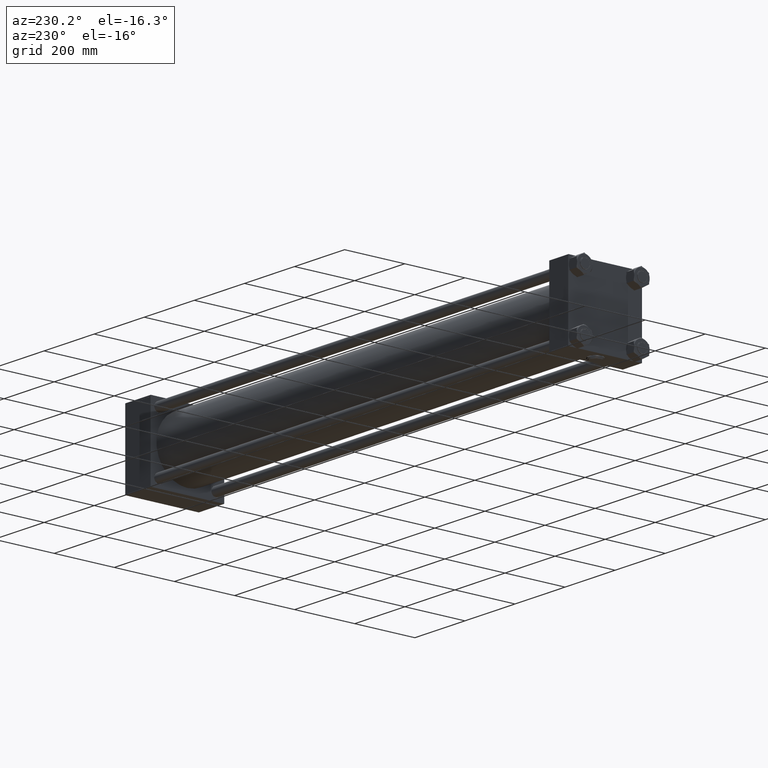
[diagram: clean part render]
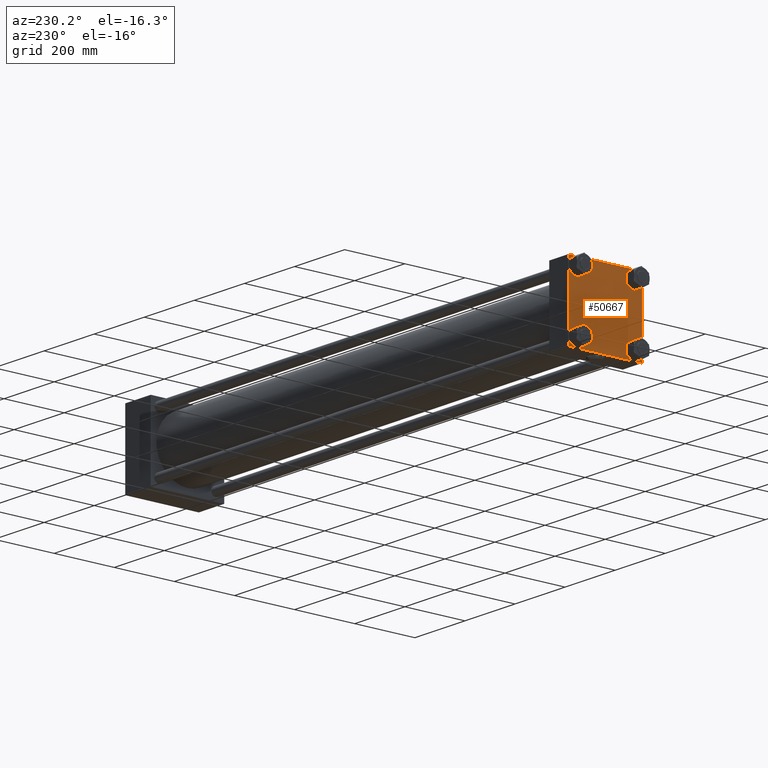
[diagram: same view with one face highlighted and labeled with its STEP entity id]
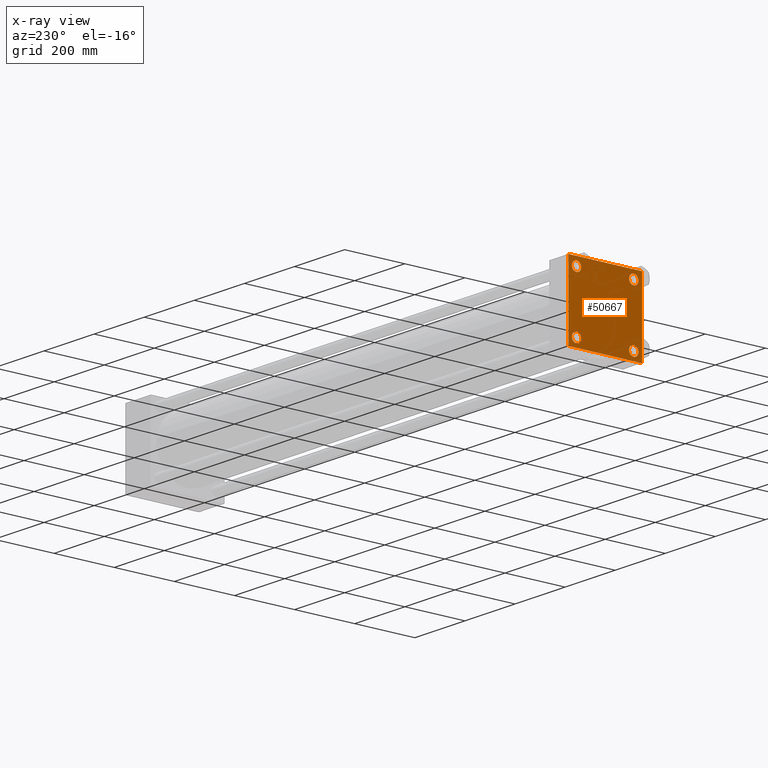
[diagram: x-ray of the same camera — body ghosted, the highlighted face saturated]
A machine part, auxiliary view. The second image highlights one B-rep face of the part: STEP entity #50667.
The next image is the same camera in x-ray: the body ghosted, the highlighted face saturated — about 0% of this face is hidden behind the body in this view.
In plain terms, the highlighted planar face has unit normal (-1, 0, 0).
Its self-contained STEP definition (entity closure, byte-faithful):
#1472 = EDGE_CURVE ( 'NONE', #42255, #13794, #11912, .T. ) ;
#1497 = ORIENTED_EDGE ( 'NONE', *, *, #35176, .T. ) ;
#1774 = CARTESIAN_POINT ( 'NONE',  ( 0.000000000000000000, -122.2500000000000142, -122.2500000000000142 ) ) ;
#1879 = AXIS2_PLACEMENT_3D ( 'NONE', #17300, #48647, #49683 ) ;
#2735 = CIRCLE ( 'NONE', #1879, 15.50000000000001421 ) ;
#2851 = EDGE_CURVE ( 'NONE', #52181, #26384, #33107, .T. ) ;
#3008 = DIRECTION ( 'NONE',  ( 1.000000000000000000, -0.000000000000000000, -0.000000000000000000 ) ) ;
#3641 = AXIS2_PLACEMENT_3D ( 'NONE', #10968, #3008, #10708 ) ;
#4708 = CARTESIAN_POINT ( 'NONE',  ( 0.000000000000000000, 95.09999999999999432, 95.10000000000002274 ) ) ;
#5244 = CARTESIAN_POINT ( 'NONE',  ( 0.000000000000000000, 95.09999999999999432, 110.6000000000000369 ) ) ;
#5767 = DIRECTION ( 'NONE',  ( -1.000000000000000000, 0.000000000000000000, 0.000000000000000000 ) ) ;
#5813 = CARTESIAN_POINT ( 'NONE',  ( 0.000000000000000000, -95.09999999999996589, 79.60000000000003695 ) ) ;
#6114 = VERTEX_POINT ( 'NONE', #9061 ) ;
#6400 = EDGE_LOOP ( 'NONE', ( #33154, #13178 ) ) ;
#6495 = LINE ( 'NONE', #31180, #24870 ) ;
#6748 = DIRECTION ( 'NONE',  ( 0.000000000000000000, -1.000000000000000000, -1.132880637372608740E-16 ) ) ;
#7556 = DIRECTION ( 'NONE',  ( 1.000000000000000000, -0.000000000000000000, -0.000000000000000000 ) ) ;
#8339 = ORIENTED_EDGE ( 'NONE', *, *, #39224, .F. ) ;
#8460 = VECTOR ( 'NONE', #36093, 1000.000000000000000 ) ;
#8571 = CARTESIAN_POINT ( 'NONE',  ( 0.000000000000000000, 95.09999999999999432, -110.6000000000000369 ) ) ;
#8617 = CARTESIAN_POINT ( 'NONE',  ( 0.000000000000000000, -95.09999999999996589, 95.10000000000005116 ) ) ;
#9061 = CARTESIAN_POINT ( 'NONE',  ( 0.000000000000000000, -122.4999999999999716, 122.0000000000001137 ) ) ;
#9441 = VERTEX_POINT ( 'NONE', #30051 ) ;
#9494 = LINE ( 'NONE', #21984, #18190 ) ;
#9545 = EDGE_CURVE ( 'NONE', #13794, #30970, #27128, .T. ) ;
#9742 = CARTESIAN_POINT ( 'NONE',  ( 0.000000000000000000, 0.000000000000000000, 0.000000000000000000 ) ) ;
#10708 = DIRECTION ( 'NONE',  ( 0.000000000000000000, 0.000000000000000000, 1.000000000000000000 ) ) ;
#10864 = EDGE_CURVE ( 'NONE', #6114, #21499, #45750, .T. ) ;
#10968 = CARTESIAN_POINT ( 'NONE',  ( 0.000000000000000000, -95.09999999999996589, 95.10000000000005116 ) ) ;
#11002 = EDGE_CURVE ( 'NONE', #30681, #42255, #44567, .T. ) ;
#11276 = DIRECTION ( 'NONE',  ( 0.000000000000000000, 0.000000000000000000, 1.000000000000000000 ) ) ;
#11353 = EDGE_LOOP ( 'NONE', ( #19030, #45157, #43936, #1497, #8339, #45711, #26781, #46690 ) ) ;
#11912 = LINE ( 'NONE', #39310, #8460 ) ;
#12348 = DIRECTION ( 'NONE',  ( 0.000000000000000000, 0.000000000000000000, 1.000000000000000000 ) ) ;
#12391 = AXIS2_PLACEMENT_3D ( 'NONE', #9742, #5767, #38436 ) ;
#12449 = ORIENTED_EDGE ( 'NONE', *, *, #23519, .T. ) ;
#12632 = VERTEX_POINT ( 'NONE', #5813 ) ;
#12636 = CARTESIAN_POINT ( 'NONE',  ( 0.000000000000000000, 95.09999999999999432, -79.60000000000000853 ) ) ;
#13178 = ORIENTED_EDGE ( 'NONE', *, *, #2851, .T. ) ;
#13471 = ORIENTED_EDGE ( 'NONE', *, *, #24240, .T. ) ;
#13794 = VERTEX_POINT ( 'NONE', #22106 ) ;
#14201 = AXIS2_PLACEMENT_3D ( 'NONE', #31837, #15649, #20153 ) ;
#14563 = VECTOR ( 'NONE', #27796, 1000.000000000000000 ) ;
#14616 = VERTEX_POINT ( 'NONE', #39944 ) ;
#15649 = DIRECTION ( 'NONE',  ( 1.000000000000000000, -0.000000000000000000, -0.000000000000000000 ) ) ;
#16107 = LINE ( 'NONE', #40015, #14563 ) ;
#17300 = CARTESIAN_POINT ( 'NONE',  ( 0.000000000000000000, -95.09999999999996589, -95.10000000000005116 ) ) ;
#17763 = VERTEX_POINT ( 'NONE', #5244 ) ;
#18190 = VECTOR ( 'NONE', #49868, 1000.000000000000000 ) ;
#18379 = CIRCLE ( 'NONE', #25985, 15.50000000000001421 ) ;
#18717 = EDGE_CURVE ( 'NONE', #30970, #52028, #9494, .T. ) ;
#18826 = EDGE_LOOP ( 'NONE', ( #13471, #31903 ) ) ;
#19030 = ORIENTED_EDGE ( 'NONE', *, *, #1472, .T. ) ;
#19124 = CARTESIAN_POINT ( 'NONE',  ( 0.000000000000000000, -121.9999999999999716, 122.5000000000000000 ) ) ;
#20153 = DIRECTION ( 'NONE',  ( 0.000000000000000000, 0.000000000000000000, 1.000000000000000000 ) ) ;
#20306 = CARTESIAN_POINT ( 'NONE',  ( 0.000000000000000000, 122.5000000000000568, 122.0000000000000853 ) ) ;
#21436 = FACE_BOUND ( 'NONE', #44415, .T. ) ;
#21499 = VERTEX_POINT ( 'NONE', #19124 ) ;
#21984 = CARTESIAN_POINT ( 'NONE',  ( 0.000000000000000000, 122.5000000000000568, -122.5000000000000000 ) ) ;
#22106 = CARTESIAN_POINT ( 'NONE',  ( 0.000000000000000000, 122.5000000000000568, -121.9999999999999432 ) ) ;
#23025 = LINE ( 'NONE', #1774, #39847 ) ;
#23249 = CARTESIAN_POINT ( 'NONE',  ( 0.000000000000000000, 95.09999999999999432, -95.10000000000002274 ) ) ;
#23519 = EDGE_CURVE ( 'NONE', #12632, #9441, #40390, .T. ) ;
#23607 = DIRECTION ( 'NONE',  ( 0.000000000000000000, 0.7071067811865868746, -0.7071067811865081598 ) ) ;
#23984 = CARTESIAN_POINT ( 'NONE',  ( 0.000000000000000000, 95.09999999999999432, 95.10000000000002274 ) ) ;
#24240 = EDGE_CURVE ( 'NONE', #17763, #47864, #51461, .T. ) ;
#24870 = VECTOR ( 'NONE', #6748, 1000.000000000000000 ) ;
#25136 = EDGE_CURVE ( 'NONE', #36035, #14616, #37082, .T. ) ;
#25985 = AXIS2_PLACEMENT_3D ( 'NONE', #31758, #32537, #12348 ) ;
#26310 = VERTEX_POINT ( 'NONE', #46695 ) ;
#26384 = VERTEX_POINT ( 'NONE', #12636 ) ;
#26552 = CIRCLE ( 'NONE', #3641, 15.50000000000001421 ) ;
#26678 = CARTESIAN_POINT ( 'NONE',  ( 0.000000000000000000, -122.0000000000000000, -122.5000000000000568 ) ) ;
#26781 = ORIENTED_EDGE ( 'NONE', *, *, #44147, .F. ) ;
#27128 = LINE ( 'NONE', #31113, #40133 ) ;
#27796 = DIRECTION ( 'NONE',  ( 0.000000000000000000, -1.132880637372608493E-16, -1.000000000000000000 ) ) ;
#27902 = CIRCLE ( 'NONE', #48233, 15.50000000000001421 ) ;
#28809 = DIRECTION ( 'NONE',  ( 1.000000000000000000, -0.000000000000000000, -0.000000000000000000 ) ) ;
#29828 = EDGE_CURVE ( 'NONE', #47864, #17763, #27902, .T. ) ;
#29925 = DIRECTION ( 'NONE',  ( 1.000000000000000000, -0.000000000000000000, -0.000000000000000000 ) ) ;
#30051 = CARTESIAN_POINT ( 'NONE',  ( 0.000000000000000000, -95.09999999999996589, 110.6000000000000654 ) ) ;
#30189 = FACE_BOUND ( 'NONE', #36399, .T. ) ;
#30195 = DIRECTION ( 'NONE',  ( 0.000000000000000000, -0.7071067811865474617, 0.7071067811865474617 ) ) ;
#30257 = AXIS2_PLACEMENT_3D ( 'NONE', #4708, #29925, #45874 ) ;
#30500 = ORIENTED_EDGE ( 'NONE', *, *, #40947, .T. ) ;
#30681 = VERTEX_POINT ( 'NONE', #46131 ) ;
#30970 = VERTEX_POINT ( 'NONE', #32793 ) ;
#31113 = CARTESIAN_POINT ( 'NONE',  ( 0.000000000000000000, 122.2500000000000142, -122.2500000000000142 ) ) ;
#31180 = CARTESIAN_POINT ( 'NONE',  ( 0.000000000000000000, 122.5000000000000568, 122.5000000000000284 ) ) ;
#31758 = CARTESIAN_POINT ( 'NONE',  ( 0.000000000000000000, 95.09999999999999432, -95.10000000000002274 ) ) ;
#31837 = CARTESIAN_POINT ( 'NONE',  ( 0.000000000000000000, -95.09999999999996589, -95.10000000000005116 ) ) ;
#31903 = ORIENTED_EDGE ( 'NONE', *, *, #29828, .T. ) ;
#32215 = DIRECTION ( 'NONE',  ( 1.000000000000000000, -0.000000000000000000, -0.000000000000000000 ) ) ;
#32537 = DIRECTION ( 'NONE',  ( 1.000000000000000000, -0.000000000000000000, -0.000000000000000000 ) ) ;
#32743 = DIRECTION ( 'NONE',  ( -0.000000000000000000, 0.7071067811865867636, 0.7071067811865082708 ) ) ;
#32793 = CARTESIAN_POINT ( 'NONE',  ( 0.000000000000000000, 122.0000000000000568, -122.5000000000000000 ) ) ;
#33107 = CIRCLE ( 'NONE', #36493, 15.50000000000001421 ) ;
#33154 = ORIENTED_EDGE ( 'NONE', *, *, #50946, .T. ) ;
#33383 = PLANE ( 'NONE',  #12391 ) ;
#35176 = EDGE_CURVE ( 'NONE', #52028, #26310, #23025, .T. ) ;
#35926 = VECTOR ( 'NONE', #32743, 1000.000000000000114 ) ;
#36035 = VERTEX_POINT ( 'NONE', #50799 ) ;
#36093 = DIRECTION ( 'NONE',  ( 0.000000000000000000, 0.000000000000000000, -1.000000000000000000 ) ) ;
#36399 = EDGE_LOOP ( 'NONE', ( #52311, #12449 ) ) ;
#36493 = AXIS2_PLACEMENT_3D ( 'NONE', #23249, #7556, #11276 ) ;
#36749 = VECTOR ( 'NONE', #23607, 1000.000000000000000 ) ;
#37082 = CIRCLE ( 'NONE', #14201, 15.50000000000001421 ) ;
#37353 = CARTESIAN_POINT ( 'NONE',  ( 0.000000000000000000, 95.09999999999999432, 79.60000000000000853 ) ) ;
#38436 = DIRECTION ( 'NONE',  ( 0.000000000000000000, 0.000000000000000000, 1.000000000000000000 ) ) ;
#39224 = EDGE_CURVE ( 'NONE', #6114, #26310, #16107, .T. ) ;
#39310 = CARTESIAN_POINT ( 'NONE',  ( 0.000000000000000000, 122.5000000000000568, 122.5000000000000284 ) ) ;
#39847 = VECTOR ( 'NONE', #30195, 1000.000000000000114 ) ;
#39944 = CARTESIAN_POINT ( 'NONE',  ( 0.000000000000000000, -95.09999999999996589, -79.60000000000003695 ) ) ;
#40015 = CARTESIAN_POINT ( 'NONE',  ( 0.000000000000000000, -122.4999999999999716, 122.5000000000000000 ) ) ;
#40133 = VECTOR ( 'NONE', #42550, 1000.000000000000114 ) ;
#40390 = CIRCLE ( 'NONE', #44625, 15.50000000000001421 ) ;
#40947 = EDGE_CURVE ( 'NONE', #14616, #36035, #2735, .T. ) ;
#41357 = FACE_BOUND ( 'NONE', #18826, .T. ) ;
#42255 = VERTEX_POINT ( 'NONE', #20306 ) ;
#42423 = FACE_OUTER_BOUND ( 'NONE', #11353, .T. ) ;
#42452 = EDGE_CURVE ( 'NONE', #9441, #12632, #26552, .T. ) ;
#42550 = DIRECTION ( 'NONE',  ( -0.000000000000000000, -0.7071067811865474617, -0.7071067811865474617 ) ) ;
#43936 = ORIENTED_EDGE ( 'NONE', *, *, #18717, .T. ) ;
#44147 = EDGE_CURVE ( 'NONE', #30681, #21499, #6495, .T. ) ;
#44415 = EDGE_LOOP ( 'NONE', ( #30500, #48192 ) ) ;
#44567 = LINE ( 'NONE', #52017, #36749 ) ;
#44625 = AXIS2_PLACEMENT_3D ( 'NONE', #8617, #28809, #44753 ) ;
#44753 = DIRECTION ( 'NONE',  ( 0.000000000000000000, 0.000000000000000000, 1.000000000000000000 ) ) ;
#45157 = ORIENTED_EDGE ( 'NONE', *, *, #9545, .T. ) ;
#45485 = CARTESIAN_POINT ( 'NONE',  ( 0.000000000000000000, -122.2499999999932641, 122.2500000000068212 ) ) ;
#45711 = ORIENTED_EDGE ( 'NONE', *, *, #10864, .T. ) ;
#45750 = LINE ( 'NONE', #45485, #35926 ) ;
#45874 = DIRECTION ( 'NONE',  ( 0.000000000000000000, 0.000000000000000000, 1.000000000000000000 ) ) ;
#46131 = CARTESIAN_POINT ( 'NONE',  ( 0.000000000000000000, 122.0000000000000568, 122.5000000000000284 ) ) ;
#46141 = FACE_BOUND ( 'NONE', #6400, .T. ) ;
#46690 = ORIENTED_EDGE ( 'NONE', *, *, #11002, .T. ) ;
#46695 = CARTESIAN_POINT ( 'NONE',  ( 0.000000000000000000, -122.5000000000000000, -122.0000000000000568 ) ) ;
#47864 = VERTEX_POINT ( 'NONE', #37353 ) ;
#48192 = ORIENTED_EDGE ( 'NONE', *, *, #25136, .T. ) ;
#48233 = AXIS2_PLACEMENT_3D ( 'NONE', #23984, #32215, #48421 ) ;
#48421 = DIRECTION ( 'NONE',  ( 0.000000000000000000, 0.000000000000000000, 1.000000000000000000 ) ) ;
#48647 = DIRECTION ( 'NONE',  ( 1.000000000000000000, -0.000000000000000000, -0.000000000000000000 ) ) ;
#49683 = DIRECTION ( 'NONE',  ( 0.000000000000000000, 0.000000000000000000, 1.000000000000000000 ) ) ;
#49868 = DIRECTION ( 'NONE',  ( 0.000000000000000000, -1.000000000000000000, -2.265761274745216987E-16 ) ) ;
#50667 = ADVANCED_FACE ( 'NONE', ( #30189, #21436, #46141, #41357, #42423 ), #33383, .T. ) ;
#50799 = CARTESIAN_POINT ( 'NONE',  ( 0.000000000000000000, -95.09999999999996589, -110.6000000000000654 ) ) ;
#50946 = EDGE_CURVE ( 'NONE', #26384, #52181, #18379, .T. ) ;
#51461 = CIRCLE ( 'NONE', #30257, 15.50000000000001421 ) ;
#52017 = CARTESIAN_POINT ( 'NONE',  ( 0.000000000000000000, 122.2499999999932641, 122.2500000000068496 ) ) ;
#52028 = VERTEX_POINT ( 'NONE', #26678 ) ;
#52181 = VERTEX_POINT ( 'NONE', #8571 ) ;
#52311 = ORIENTED_EDGE ( 'NONE', *, *, #42452, .T. ) ;